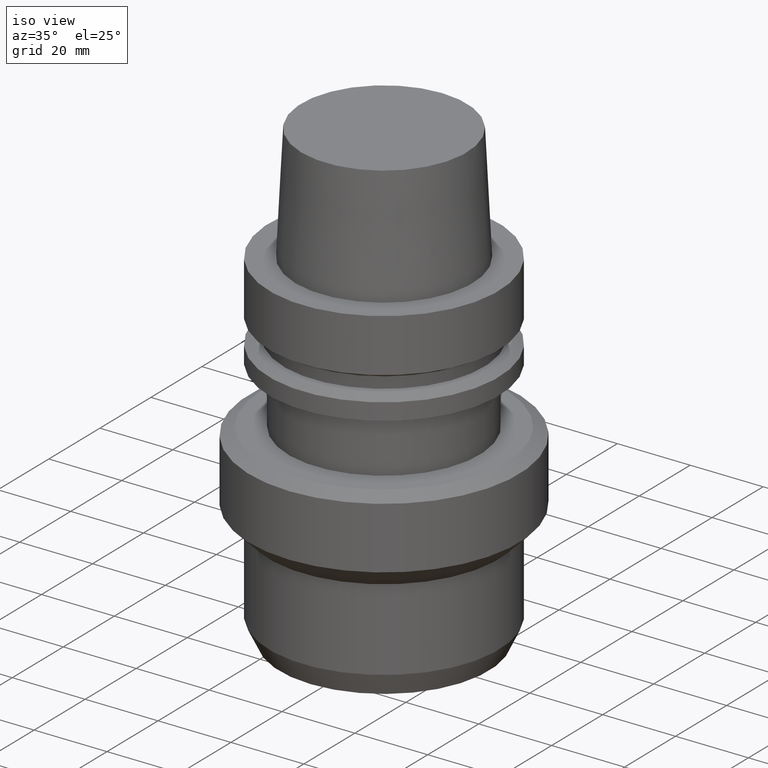
[diagram: clean part render]
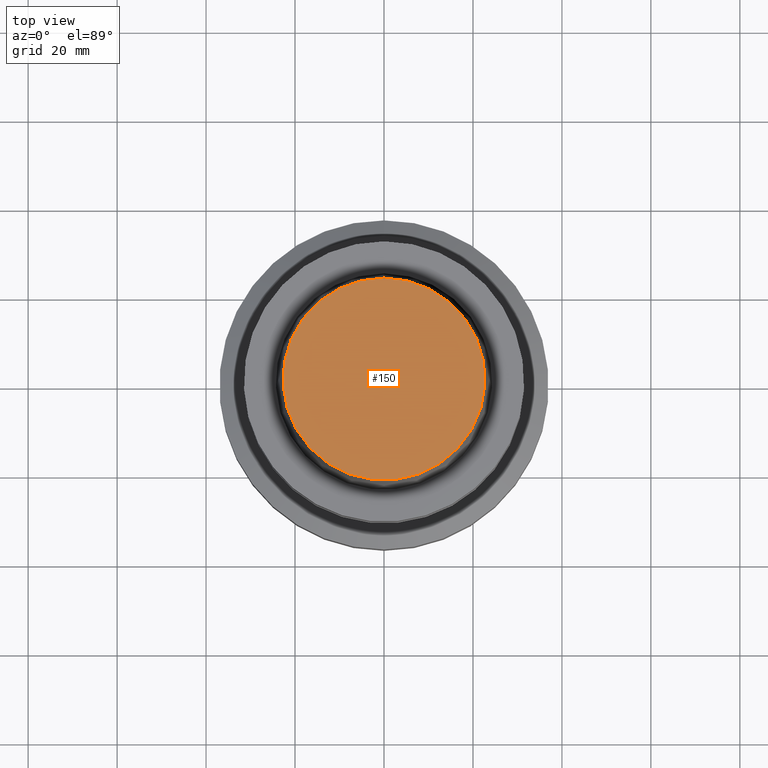
[diagram: tour spotlight — one face highlighted and labeled with its STEP entity id]
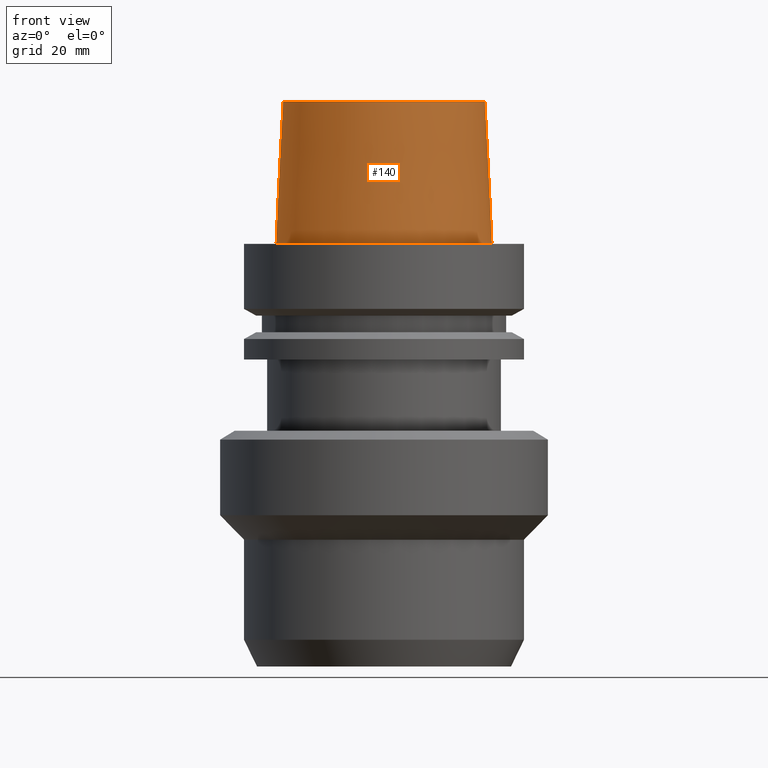
[diagram: tour spotlight — one face highlighted and labeled with its STEP entity id]
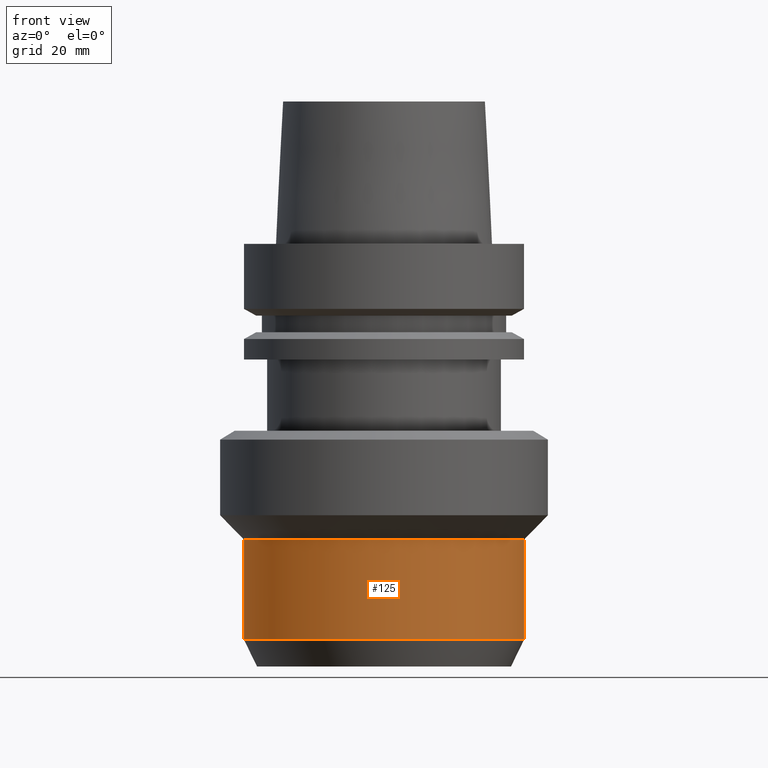
[diagram: tour spotlight — one face highlighted and labeled with its STEP entity id]
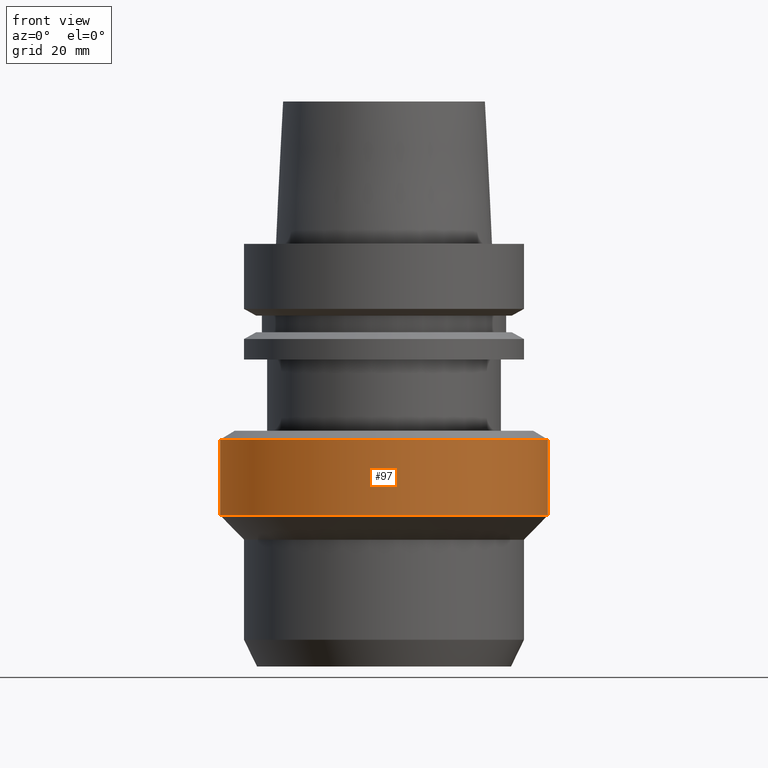
[diagram: tour spotlight — one face highlighted and labeled with its STEP entity id]
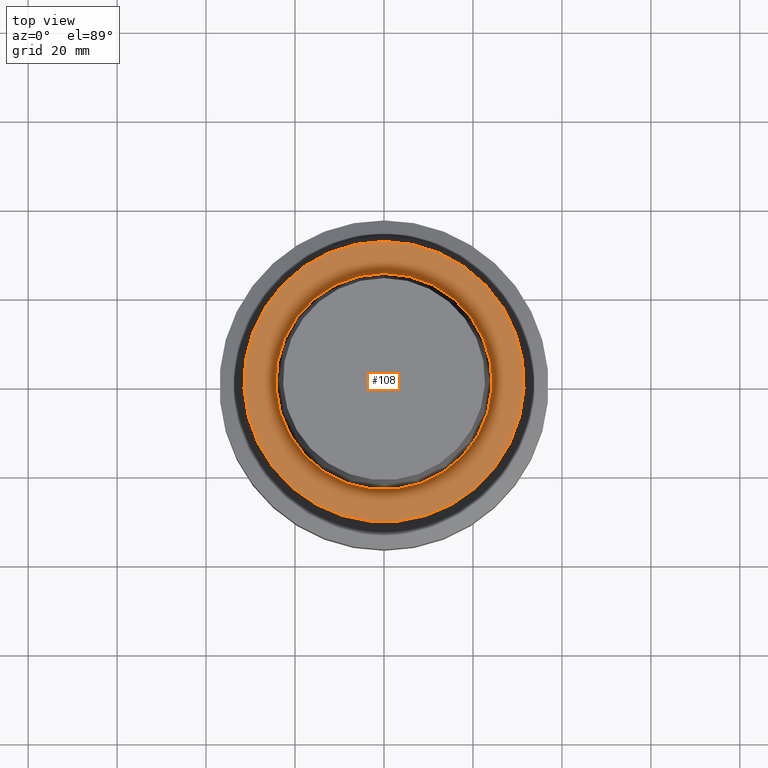
[diagram: tour spotlight — one face highlighted and labeled with its STEP entity id]
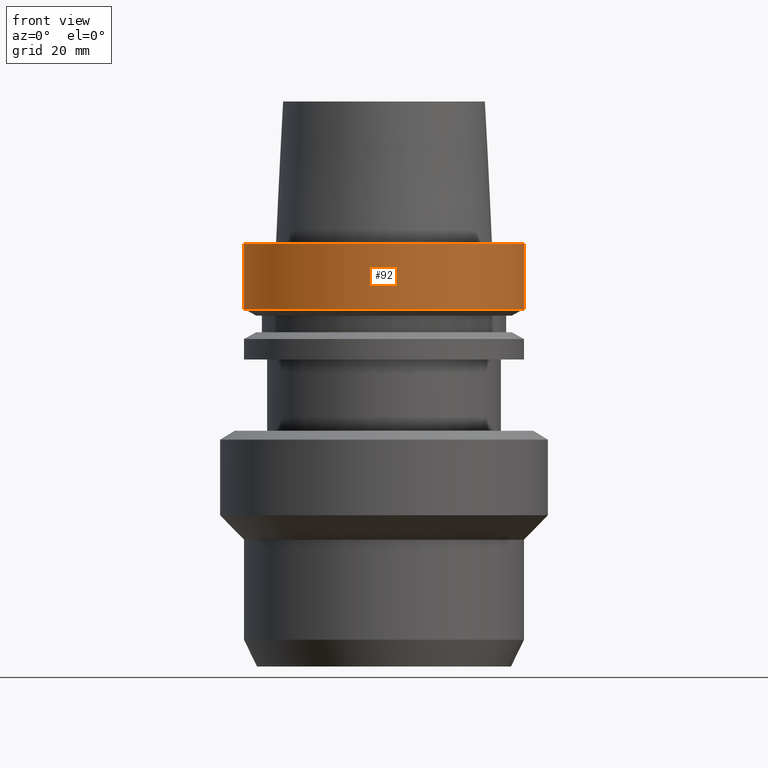
[diagram: tour spotlight — one face highlighted and labeled with its STEP entity id]
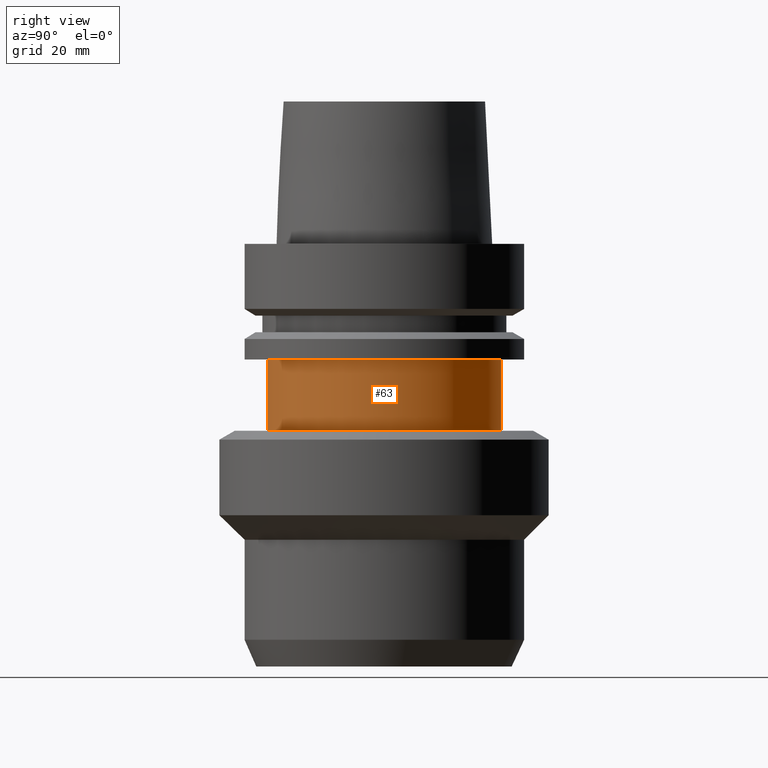
[diagram: tour spotlight — one face highlighted and labeled with its STEP entity id]
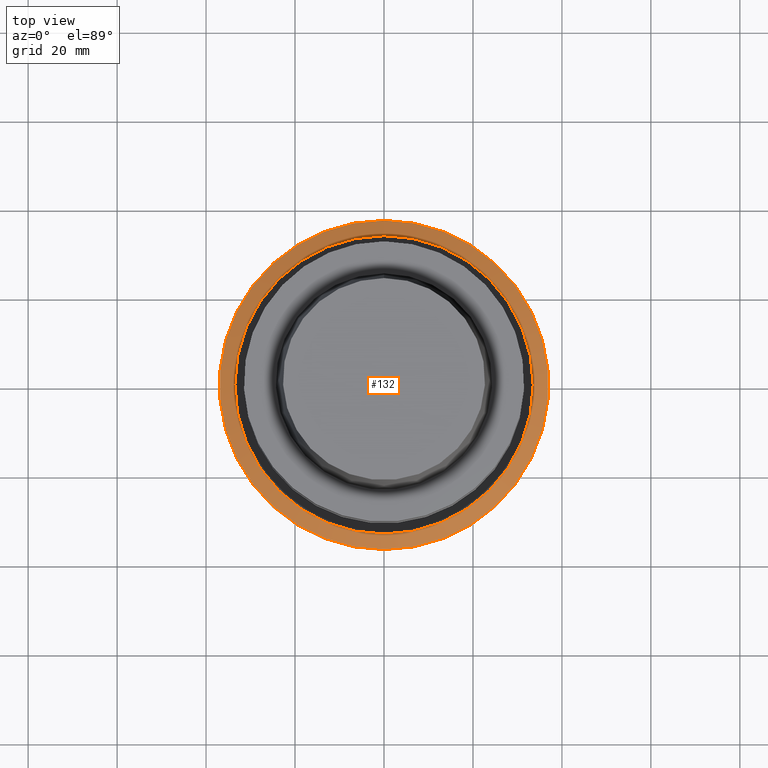
[diagram: tour spotlight — one face highlighted and labeled with its STEP entity id]
A machine part: a face-by-face anatomy tour. The part has 19 B-rep faces; the first image is the clean iso view, then the 8 largest visible faces are spotlighted one at a time (largest first), each with its STEP entity span.

Face 1 — top view, entity #150. In plain terms, the highlighted planar face has unit normal (-0, 0, 1).
Definition (entity closure, byte-faithful):
#114=EDGE_CURVE('Unnamed[1]',#255,#255,#256,.T.);
#150=ADVANCED_FACE('Unnamed[1]',(#312),#313,.T.);
#255=VERTEX_POINT('',#431);
#256=CIRCLE('',#432,22.715);
#312=FACE_OUTER_BOUND('',#502,.T.);
#313=PLANE('',#503);
#431=CARTESIAN_POINT('',(-1.95943487863576E-015,22.715,32.0));
#432=AXIS2_PLACEMENT_3D('',#607,#608,#609);
#502=EDGE_LOOP('',(#671));
#503=AXIS2_PLACEMENT_3D('',#672,#673,#674);
#607=CARTESIAN_POINT('',(-1.95943487863576E-015,1.84746885195399E-015,32.0));
#608=DIRECTION('',(6.12323399573676E-017,7.79108829899063E-017,-1.0));
#609=DIRECTION('',(-9.59781840438566E-033,1.0,7.79108829899063E-017));
#671=ORIENTED_EDGE('',*,*,#114,.F.);
#672=CARTESIAN_POINT('',(-1.95943487863576E-015,11.3575,32.0));
#673=DIRECTION('',(-6.12323399573677E-017,9.72362339746438E-016,1.0));
#674=DIRECTION('',(-5.47128686183263E-032,-1.0,9.72362339746438E-016));

Face 2 — front view, entity #140. In plain terms, the highlighted conical surface has half-angle 2.862 deg.
Definition (entity closure, byte-faithful):
#82=EDGE_CURVE('Unnamed[1]',#205,#205,#206,.T.);
#114=EDGE_CURVE('Unnamed[1]',#255,#255,#256,.T.);
#140=ADVANCED_FACE('Unnamed[1]',(#296,#297),#298,.T.);
#205=VERTEX_POINT('',#368);
#206=CIRCLE('',#369,24.315);
#255=VERTEX_POINT('',#431);
#256=CIRCLE('',#432,22.715);
#296=FACE_BOUND('',#482,.T.);
#297=FACE_BOUND('',#483,.T.);
#298=CONICAL_SURFACE('',#484,23.515,0.0499583957219433);
#368=CARTESIAN_POINT('',(-2.99705514225764E-031,24.315,2.97772869212679E-015));
#369=AXIS2_PLACEMENT_3D('',#551,#552,#553);
#431=CARTESIAN_POINT('',(-1.95943487863576E-015,22.715,32.0));
#432=AXIS2_PLACEMENT_3D('',#607,#608,#609);
#482=EDGE_LOOP('',(#653));
#483=EDGE_LOOP('',(#654));
#484=AXIS2_PLACEMENT_3D('',#655,#656,#657);
#551=CARTESIAN_POINT('',(-5.35022365741186E-047,4.34061710763099E-015,5.31572284718453E-031));
#552=DIRECTION('',(6.12323399573677E-017,7.79108829899063E-017,-1.0));
#553=DIRECTION('',(-9.59781840438566E-033,1.0,7.79108829899063E-017));
#607=CARTESIAN_POINT('',(-1.95943487863576E-015,1.84746885195399E-015,32.0));
#608=DIRECTION('',(6.12323399573676E-017,7.79108829899063E-017,-1.0));
#609=DIRECTION('',(-9.59781840438566E-033,1.0,7.79108829899063E-017));
#653=ORIENTED_EDGE('',*,*,#82,.F.);
#654=ORIENTED_EDGE('',*,*,#114,.T.);
#655=CARTESIAN_POINT('',(-9.79717439317882E-016,3.09404297979249E-015,16.0));
#656=DIRECTION('',(6.12323399573677E-017,7.79108829899064E-017,-1.0));
#657=DIRECTION('',(-9.59781840438566E-033,1.0,7.79108829899063E-017));

Face 3 — front view, entity #125. In plain terms, the highlighted cylindrical surface (bore or boss wall) has radius 31.5 mm, axis along (0, 0, -1).
Definition (entity closure, byte-faithful):
#102=EDGE_CURVE('Unnamed[1]',#236,#236,#237,.T.);
#125=ADVANCED_FACE('Unnamed[1]',(#272,#273),#274,.T.);
#129=EDGE_CURVE('Unnamed[1]',#279,#279,#280,.T.);
#236=VERTEX_POINT('',#407);
#237=CIRCLE('',#408,31.5000000000002);
#272=FACE_BOUND('',#452,.T.);
#273=FACE_BOUND('',#453,.T.);
#274=CYLINDRICAL_SURFACE('',#454,31.5000000000002);
#279=VERTEX_POINT('',#461);
#280=CIRCLE('',#462,31.5000000000002);
#407=CARTESIAN_POINT('',(5.44967825620575E-015,31.5000000000002,-89.0000000000005));
#408=AXIS2_PLACEMENT_3D('',#586,#587,#588);
#452=EDGE_LOOP('',(#626));
#453=EDGE_LOOP('',(#627));
#454=AXIS2_PLACEMENT_3D('',#628,#629,#630);
#461=CARTESIAN_POINT('',(4.07195060716506E-015,31.5000000000002,-66.5000000000019));
#462=AXIS2_PLACEMENT_3D('',#634,#635,#636);
#586=CARTESIAN_POINT('',(5.44967825620575E-015,1.12746856937327E-014,-89.0000000000005));
#587=DIRECTION('',(6.12323399573677E-017,7.79108829899063E-017,-1.0));
#588=DIRECTION('',(-9.59781840438566E-033,1.0,7.79108829899063E-017));
#626=ORIENTED_EDGE('',*,*,#102,.F.);
#627=ORIENTED_EDGE('',*,*,#129,.T.);
#628=CARTESIAN_POINT('',(4.76081443168541E-015,1.03981882600963E-014,-77.7500000000012));
#629=DIRECTION('',(6.12323399573677E-017,7.79108829899063E-017,-1.0));
#630=DIRECTION('',(-9.59781840438566E-033,1.0,7.79108829899063E-017));
#634=CARTESIAN_POINT('',(4.07195060716506E-015,9.5216908264599E-015,-66.5000000000019));
#635=DIRECTION('',(6.12323399573677E-017,7.79108829899063E-017,-1.0));
#636=DIRECTION('',(-9.59781840438566E-033,1.0,7.79108829899063E-017));

Face 4 — front view, entity #97. In plain terms, the highlighted cylindrical surface (bore or boss wall) has radius 37 mm, axis along (0, 0, -1).
Definition (entity closure, byte-faithful):
#97=ADVANCED_FACE('Unnamed[1]',(#227,#228),#229,.T.);
#110=EDGE_CURVE('Unnamed[1]',#249,#249,#250,.T.);
#127=EDGE_CURVE('Unnamed[1]',#276,#276,#277,.T.);
#227=FACE_BOUND('',#396,.T.);
#228=FACE_BOUND('',#397,.T.);
#229=CYLINDRICAL_SURFACE('',#398,37.0);
#249=VERTEX_POINT('',#423);
#250=CIRCLE('',#424,37.0000000000001);
#276=VERTEX_POINT('',#457);
#277=CIRCLE('',#458,36.9999999999999);
#396=EDGE_LOOP('',(#575));
#397=EDGE_LOOP('',(#576));
#398=AXIS2_PLACEMENT_3D('',#577,#578,#579);
#423=CARTESIAN_POINT('',(3.73517273739954E-015,37.0000000000001,-61.0000000000018));
#424=AXIS2_PLACEMENT_3D('',#601,#602,#603);
#457=CARTESIAN_POINT('',(2.69422295812172E-015,36.9999999999999,-43.9999999999599));
#458=AXIS2_PLACEMENT_3D('',#631,#632,#633);
#575=ORIENTED_EDGE('',*,*,#110,.F.);
#576=ORIENTED_EDGE('',*,*,#127,.T.);
#577=CARTESIAN_POINT('',(3.21469784776063E-015,8.43093846459958E-015,-52.4999999999808));
#578=DIRECTION('',(6.12323399573677E-017,7.79108829899063E-017,-1.0));
#579=DIRECTION('',(-9.59781840438566E-033,1.0,7.79108829899063E-017));
#601=CARTESIAN_POINT('',(3.73517273739954E-015,9.09318097001541E-015,-61.0000000000018));
#602=DIRECTION('',(6.12323399573677E-017,7.79108829899063E-017,-1.0));
#603=DIRECTION('',(-9.59781840438566E-033,1.0,7.79108829899063E-017));
#631=CARTESIAN_POINT('',(2.69422295812172E-015,7.76869595918374E-015,-43.9999999999599));
#632=DIRECTION('',(6.12323399573677E-017,7.79108829899063E-017,-1.0));
#633=DIRECTION('',(-9.59781840438566E-033,1.0,7.79108829899063E-017));

Face 5 — top view, entity #108. In plain terms, the highlighted planar face has unit normal (-0, -0, 1).
Definition (entity closure, byte-faithful):
#82=EDGE_CURVE('Unnamed[1]',#205,#205,#206,.T.);
#108=ADVANCED_FACE('Unnamed[1]',(#245,#246),#247,.T.);
#142=EDGE_CURVE('Unnamed[1]',#300,#300,#301,.T.);
#205=VERTEX_POINT('',#368);
#206=CIRCLE('',#369,24.315);
#245=FACE_OUTER_BOUND('',#418,.T.);
#246=FACE_BOUND('',#419,.T.);
#247=PLANE('',#420);
#300=VERTEX_POINT('',#487);
#301=CIRCLE('',#488,31.5000000000001);
#368=CARTESIAN_POINT('',(-2.99705514225764E-031,24.315,2.97772869212679E-015));
#369=AXIS2_PLACEMENT_3D('',#551,#552,#553);
#418=EDGE_LOOP('',(#596));
#419=EDGE_LOOP('',(#597));
#420=AXIS2_PLACEMENT_3D('',#598,#599,#600);
#487=CARTESIAN_POINT('',(-3.88267476788467E-031,31.5000000000001,3.85763741731417E-015));
#488=AXIS2_PLACEMENT_3D('',#658,#659,#660);
#551=CARTESIAN_POINT('',(-5.35022365741186E-047,4.34061710763099E-015,5.31572284718453E-031));
#552=DIRECTION('',(6.12323399573677E-017,7.79108829899063E-017,-1.0));
#553=DIRECTION('',(-9.59781840438566E-033,1.0,7.79108829899063E-017));
#596=ORIENTED_EDGE('',*,*,#142,.F.);
#597=ORIENTED_EDGE('',*,*,#82,.T.);
#598=CARTESIAN_POINT('',(-3.43986495507116E-031,27.9075,3.41768305472048E-015));
#599=DIRECTION('',(-6.12323399573677E-017,-1.22464679914735E-016,1.0));
#600=DIRECTION('',(1.23259516440783E-032,-1.0,-1.22464679914735E-016));
#658=CARTESIAN_POINT('',(-5.35022365741186E-047,4.34061710763099E-015,5.31572284718453E-031));
#659=DIRECTION('',(6.12323399573677E-017,7.79108829899063E-017,-1.0));
#660=DIRECTION('',(-9.59781840438566E-033,1.0,7.79108829899063E-017));

Face 6 — front view, entity #92. In plain terms, the highlighted cylindrical surface (bore or boss wall) has radius 31.5 mm, axis along (0, 0, -1).
Definition (entity closure, byte-faithful):
#87=EDGE_CURVE('Unnamed[1]',#212,#212,#213,.T.);
#92=ADVANCED_FACE('Unnamed[1]',(#219,#220),#221,.T.);
#142=EDGE_CURVE('Unnamed[1]',#300,#300,#301,.T.);
#212=VERTEX_POINT('',#377);
#213=CIRCLE('',#378,31.5);
#219=FACE_BOUND('',#386,.T.);
#220=FACE_BOUND('',#387,.T.);
#221=CYLINDRICAL_SURFACE('',#388,31.5);
#300=VERTEX_POINT('',#487);
#301=CIRCLE('',#488,31.5000000000001);
#377=CARTESIAN_POINT('',(8.95369947681261E-016,31.5,-14.6225009252407));
#378=AXIS2_PLACEMENT_3D('',#559,#560,#561);
#386=EDGE_LOOP('',(#566));
#387=EDGE_LOOP('',(#567));
#388=AXIS2_PLACEMENT_3D('',#568,#569,#570);
#487=CARTESIAN_POINT('',(-3.88267476788467E-031,31.5000000000001,3.85763741731417E-015));
#488=AXIS2_PLACEMENT_3D('',#658,#659,#660);
#559=CARTESIAN_POINT('',(8.95369947681262E-016,5.47986906623721E-015,-14.6225009252407));
#560=DIRECTION('',(6.12323399573677E-017,7.79108829899063E-017,-1.0));
#561=DIRECTION('',(-9.59781840438566E-033,1.0,7.79108829899063E-017));
#566=ORIENTED_EDGE('',*,*,#87,.F.);
#567=ORIENTED_EDGE('',*,*,#142,.T.);
#568=CARTESIAN_POINT('',(4.47684973840631E-016,4.9102430869341E-015,-7.31125046262035));
#569=DIRECTION('',(6.12323399573677E-017,7.79108829899063E-017,-1.0));
#570=DIRECTION('',(-9.59781840438566E-033,1.0,7.79108829899063E-017));
#658=CARTESIAN_POINT('',(-5.35022365741186E-047,4.34061710763099E-015,5.31572284718453E-031));
#659=DIRECTION('',(6.12323399573677E-017,7.79108829899063E-017,-1.0));
#660=DIRECTION('',(-9.59781840438566E-033,1.0,7.79108829899063E-017));

Face 7 — right view, entity #63. In plain terms, the highlighted cylindrical surface (bore or boss wall) has radius 26.3 mm, axis along (0, 0, -1).
Definition (entity closure, byte-faithful):
#63=ADVANCED_FACE('Unnamed[1]',(#175,#176),#177,.T.);
#144=EDGE_CURVE('Unnamed[1]',#303,#303,#304,.T.);
#154=EDGE_CURVE('Unnamed[1]',#318,#318,#319,.T.);
#175=FACE_BOUND('',#332,.T.);
#176=FACE_BOUND('',#333,.T.);
#177=CYLINDRICAL_SURFACE('',#334,26.3);
#303=VERTEX_POINT('',#491);
#304=CIRCLE('',#492,26.3);
#318=VERTEX_POINT('',#510);
#319=CIRCLE('',#511,26.3);
#332=EDGE_LOOP('',(#518));
#333=EDGE_LOOP('',(#519));
#334=AXIS2_PLACEMENT_3D('',#520,#521,#522);
#491=CARTESIAN_POINT('',(1.59204083889154E-015,26.3,-25.9999999999997));
#492=AXIS2_PLACEMENT_3D('',#661,#662,#663);
#510=CARTESIAN_POINT('',(2.571758278207E-015,26.3,-41.9999999999601));
#511=AXIS2_PLACEMENT_3D('',#678,#679,#680);
#518=ORIENTED_EDGE('',*,*,#154,.F.);
#519=ORIENTED_EDGE('',*,*,#144,.T.);
#520=CARTESIAN_POINT('',(2.08189955854927E-015,6.98958712928623E-015,-33.9999999999799));
#521=DIRECTION('',(6.12323399573677E-017,7.79108829899064E-017,-1.0));
#522=DIRECTION('',(-9.59781840438566E-033,1.0,7.79108829899063E-017));
#661=CARTESIAN_POINT('',(1.59204083889154E-015,6.36630006536853E-015,-25.9999999999997));
#662=DIRECTION('',(6.12323399573677E-017,7.79108829899064E-017,-1.0));
#663=DIRECTION('',(-9.59781840438566E-033,1.0,7.79108829899063E-017));
#678=CARTESIAN_POINT('',(2.571758278207E-015,7.61287419320394E-015,-41.9999999999601));
#679=DIRECTION('',(6.12323399573677E-017,7.79108829899064E-017,-1.0));
#680=DIRECTION('',(-9.59781840438566E-033,1.0,7.79108829899063E-017));

Face 8 — top view, entity #132. In plain terms, the highlighted conical surface has half-angle 60 deg.
Definition (entity closure, byte-faithful):
#89=EDGE_CURVE('Unnamed[1]',#215,#215,#216,.T.);
#127=EDGE_CURVE('Unnamed[1]',#276,#276,#277,.T.);
#132=ADVANCED_FACE('Unnamed[1]',(#283,#284),#285,.T.);
#215=VERTEX_POINT('',#381);
#216=CIRCLE('',#382,33.5358983848622);
#276=VERTEX_POINT('',#457);
#277=CIRCLE('',#458,36.9999999999999);
#283=FACE_BOUND('',#466,.T.);
#284=FACE_BOUND('',#467,.T.);
#285=CONICAL_SURFACE('',#468,35.2679491924311,1.04719755119662);
#381=CARTESIAN_POINT('',(2.57175827820699E-015,33.5358983848622,-41.99999999996));
#382=AXIS2_PLACEMENT_3D('',#562,#563,#564);
#457=CARTESIAN_POINT('',(2.69422295812172E-015,36.9999999999999,-43.9999999999599));
#458=AXIS2_PLACEMENT_3D('',#631,#632,#633);
#466=EDGE_LOOP('',(#638));
#467=EDGE_LOOP('',(#639));
#468=AXIS2_PLACEMENT_3D('',#640,#641,#642);
#562=CARTESIAN_POINT('',(2.571758278207E-015,7.61287419320394E-015,-41.99999999996));
#563=DIRECTION('',(6.12323399573677E-017,7.79108829899063E-017,-1.0));
#564=DIRECTION('',(-9.59781840438566E-033,1.0,7.79108829899063E-017));
#631=CARTESIAN_POINT('',(2.69422295812172E-015,7.76869595918374E-015,-43.9999999999599));
#632=DIRECTION('',(6.12323399573677E-017,7.79108829899063E-017,-1.0));
#633=DIRECTION('',(-9.59781840438566E-033,1.0,7.79108829899063E-017));
#638=ORIENTED_EDGE('',*,*,#127,.F.);
#639=ORIENTED_EDGE('',*,*,#89,.T.);
#640=CARTESIAN_POINT('',(2.63299061816436E-015,7.69078507619384E-015,-42.99999999996));
#641=DIRECTION('',(6.12323399573676E-017,7.79108829899063E-017,-1.0));
#642=DIRECTION('',(-9.59781840438566E-033,1.0,7.79108829899063E-017));